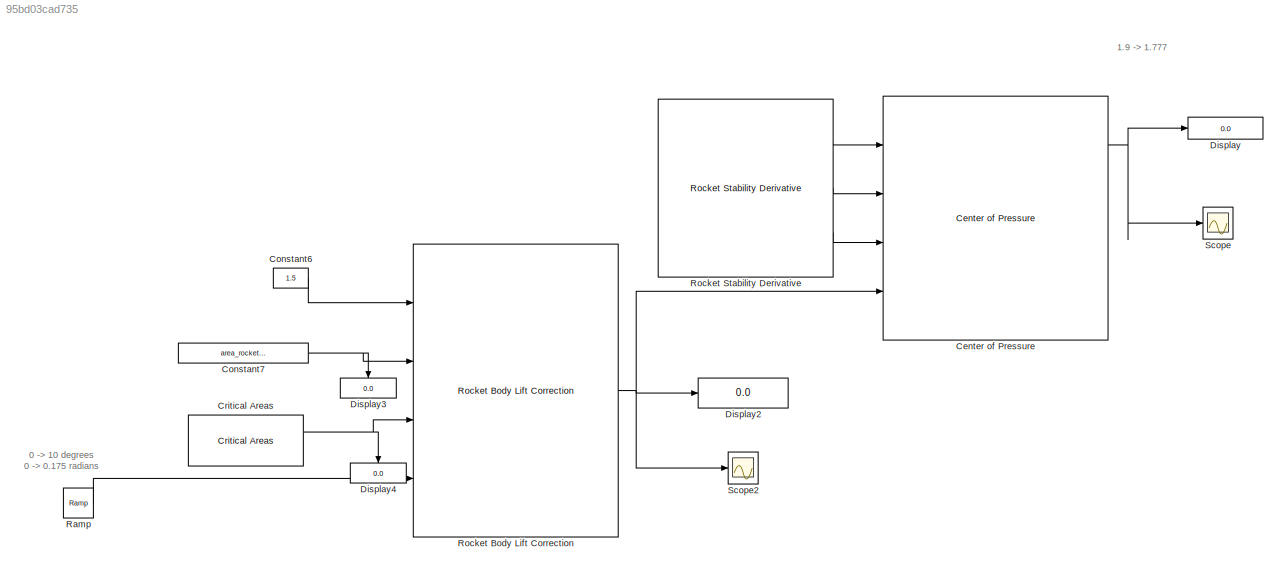
MODEL slx_95bd03cad735
KIND model
CONFIG InitFcn = %fins_count=3\n%height_fins=0.095\n%fin_center_distance=0.15\n%fin_tip_chord=0.1\n%fin_root_chord=0.35\n%diameter_outer=0.103\n%d_nose_tip_to_fins=1\n%height_nose_cone=0.5\ndata_parametric_model
BLOCK [Reference] Center of Pressure  REF=rocket_angular_flight_library/Center of Pressure
  Ports = [4, 4]
  SourceBlock = rocket_angular_flight_library/Center of Pressure
  SourceType = SubSystem
BLOCK [Constant] Constant6
  Value = 1.5
BLOCK [Constant] Constant7
  Value = area_rocket_planform
BLOCK [Reference] Critical Areas  REF=rocket_drag_library/Critical Areas  (lib defined in slx_51275aa4cfd2)
  Ports = [0, 2]
  SourceBlock = rocket_drag_library/Critical Areas
  SourceType = SubSystem
BLOCK [Display] Display
  Decimation = 1
  Ports = [1]
BLOCK [Display] Display2
  Decimation = 1
  Ports = [1]
BLOCK [Display] Display3
  Decimation = 1
  Ports = [1]
BLOCK [Display] Display4
  Decimation = 1
  Ports = [1]
BLOCK [Reference] Ramp  REF=simulink/Sources/Ramp
  Ports = [0, 1]
  SourceBlock = simulink/Sources/Ramp
  SourceType = Ramp
  VectorParams1D = on
  X0 = 0
  slope = 0.0175
  start = 0
BLOCK [Reference] Rocket Body Lift Correction  REF=rocket_angular_flight_library/Rocket Body Lift Correction
  Ports = [4, 1]
  SourceBlock = rocket_angular_flight_library/Rocket Body Lift Correction
  SourceType = SubSystem
BLOCK [Reference] Rocket Stability Derivative  REF=rocket_angular_flight_library/Rocket Stability Derivative
  Ports = [0, 3]
  SourceBlock = rocket_angular_flight_library/Rocket Stability Derivative
  SourceType = SubSystem
BLOCK [Scope] Scope
  DataFormat = StructureWithTime
  Floating = off
  NumInputPorts = 1
  Ports = [1]
  SampleTime = 0
  ShowLegends = off
BLOCK [Scope] Scope2
  DataFormat = StructureWithTime
  Floating = off
  NumInputPorts = 1
  Ports = [1]
  SampleTime = 0
  SaveName = ScopeData2
  ShowLegends = off
ANNOTATION (root): 0 -> 10 degrees 0 -> 0.175 radians
ANNOTATION (root): 1.9 -> 1.777
NET Center of Pressure:1 -> Display:1, Scope:1
LINE Constant6:1 -> Rocket Body Lift Correction:1
NET Constant7:1 -> Display3:1, Rocket Body Lift Correction:2
NET Critical Areas:1 -> Display4:1, Rocket Body Lift Correction:3
LINE Ramp:1 -> Rocket Body Lift Correction:4
NET Rocket Body Lift Correction:1 -> Center of Pressure:4, Display2:1, Scope2:1
LINE Rocket Stability Derivative:1 -> Center of Pressure:1
LINE Rocket Stability Derivative:2 -> Center of Pressure:2
LINE Rocket Stability Derivative:3 -> Center of Pressure:3
note: NET lines group one-source signal fan-out (src -> all destinations, sorted); 1:1 wires keep LINE
